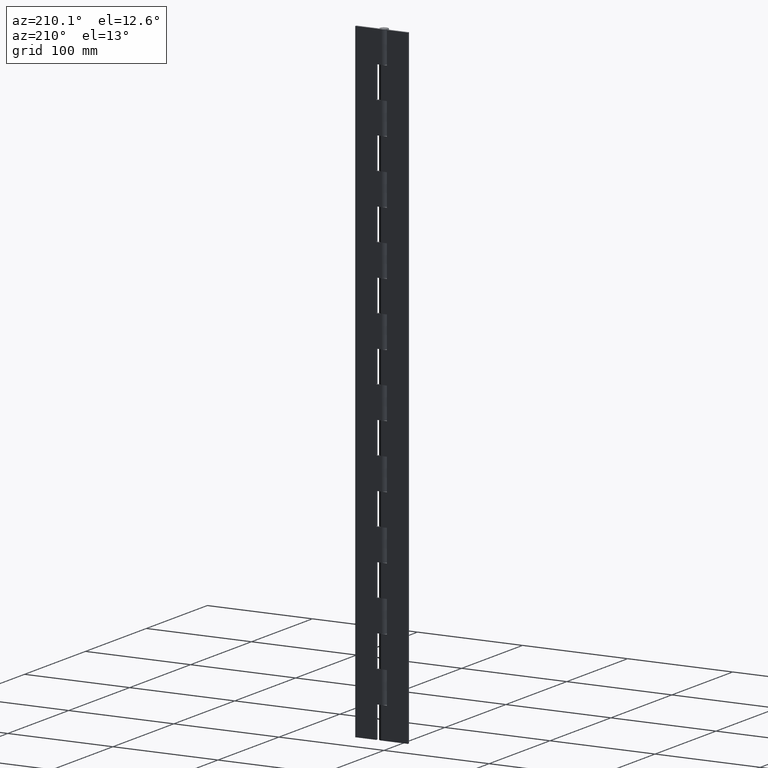
[diagram: clean part render]
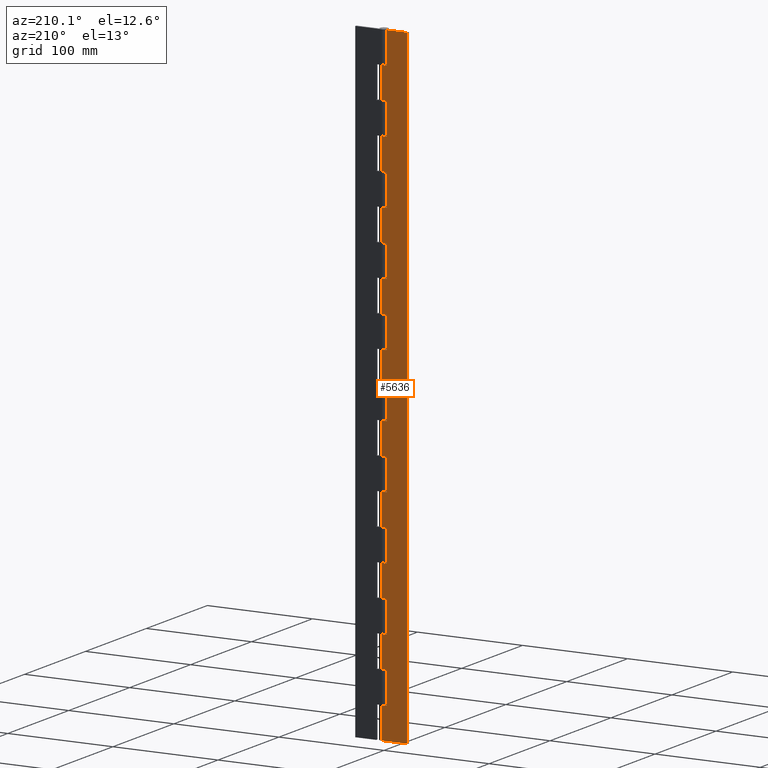
[diagram: same view with one face highlighted and labeled with its STEP entity id]
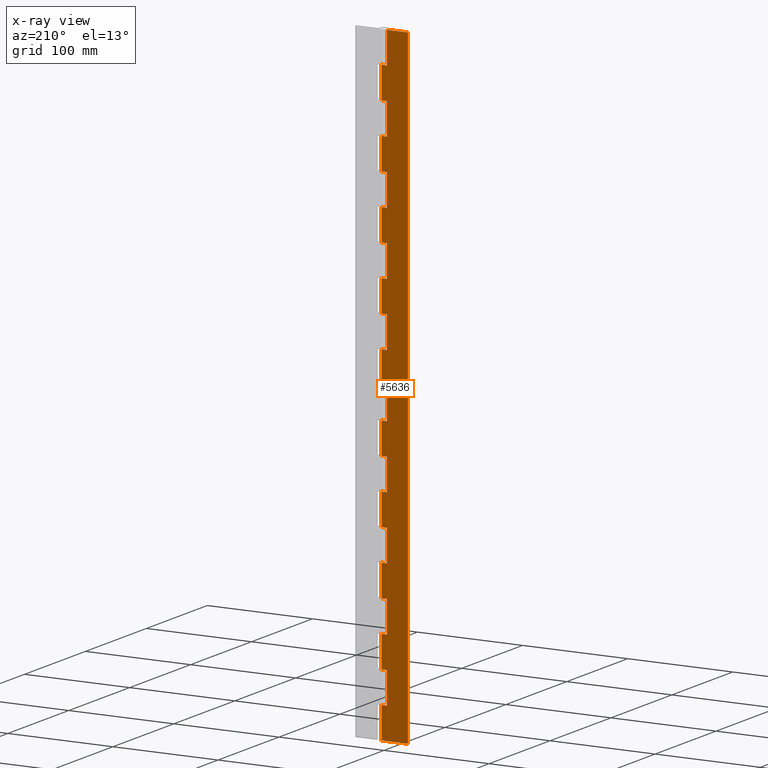
[diagram: x-ray of the same camera — body ghosted, the highlighted face saturated]
A machine part, auxiliary view. The second image highlights one B-rep face of the part: STEP entity #5636.
The next image is the same camera in x-ray: the body ghosted, the highlighted face saturated — about 0% of this face is hidden behind the body in this view.
In plain terms, the highlighted face is a freeform B-spline surface patch.
Its self-contained STEP definition (entity closure, byte-faithful):
#2875=CARTESIAN_POINT('',(-5.0,4.0,570.0));
#2876=VERTEX_POINT('',#2875);
#2882=CARTESIAN_POINT('',(-5.0,4.0,600.0));
#2883=VERTEX_POINT('',#2882);
#2884=CARTESIAN_POINT('',(-5.0,4.0,600.0));
#2885=CARTESIAN_POINT('',(-5.0,4.0,570.0));
#2886=QUASI_UNIFORM_CURVE('',1,(#2884,#2885),.UNSPECIFIED.,.F.,.U.);
#2887=EDGE_CURVE('',#2883,#2876,#2886,.T.);
#2937=CARTESIAN_POINT('',(0.0,4.0,570.0));
#2938=VERTEX_POINT('',#2937);
#2958=CARTESIAN_POINT('',(-5.0,4.0,570.0));
#2959=CARTESIAN_POINT('',(0.0,4.0,570.0));
#2960=QUASI_UNIFORM_CURVE('',1,(#2958,#2959),.UNSPECIFIED.,.F.,.U.);
#2961=EDGE_CURVE('',#2876,#2938,#2960,.T.);
#2981=CARTESIAN_POINT('',(-5.0,4.0,540.0));
#2982=VERTEX_POINT('',#2981);
#2988=CARTESIAN_POINT('',(0.0,4.0,540.0));
#2989=VERTEX_POINT('',#2988);
#2990=CARTESIAN_POINT('',(0.0,4.0,540.0));
#2991=CARTESIAN_POINT('',(-5.0,4.0,540.0));
#2992=QUASI_UNIFORM_CURVE('',1,(#2990,#2991),.UNSPECIFIED.,.F.,.U.);
#2993=EDGE_CURVE('',#2989,#2982,#2992,.T.);
#3087=CARTESIAN_POINT('',(0.0,4.0,510.0));
#3088=VERTEX_POINT('',#3087);
#3108=CARTESIAN_POINT('',(-5.0,4.0,510.0));
#3109=VERTEX_POINT('',#3108);
#3110=CARTESIAN_POINT('',(-5.0,4.0,510.0));
#3111=CARTESIAN_POINT('',(0.0,4.0,510.0));
#3112=QUASI_UNIFORM_CURVE('',1,(#3110,#3111),.UNSPECIFIED.,.F.,.U.);
#3113=EDGE_CURVE('',#3109,#3088,#3112,.T.);
#3134=CARTESIAN_POINT('',(-5.0,4.0,540.0));
#3135=CARTESIAN_POINT('',(-5.0,4.0,510.0));
#3136=QUASI_UNIFORM_CURVE('',1,(#3134,#3135),.UNSPECIFIED.,.F.,.U.);
#3137=EDGE_CURVE('',#2982,#3109,#3136,.T.);
#3157=CARTESIAN_POINT('',(-5.0,4.0,480.0));
#3158=VERTEX_POINT('',#3157);
#3164=CARTESIAN_POINT('',(0.0,4.0,480.0));
#3165=VERTEX_POINT('',#3164);
#3166=CARTESIAN_POINT('',(0.0,4.0,480.0));
#3167=CARTESIAN_POINT('',(-5.0,4.0,480.0));
#3168=QUASI_UNIFORM_CURVE('',1,(#3166,#3167),.UNSPECIFIED.,.F.,.U.);
#3169=EDGE_CURVE('',#3165,#3158,#3168,.T.);
#3263=CARTESIAN_POINT('',(0.0,4.0,450.0));
#3264=VERTEX_POINT('',#3263);
#3284=CARTESIAN_POINT('',(-5.0,4.0,450.0));
#3285=VERTEX_POINT('',#3284);
#3286=CARTESIAN_POINT('',(-5.0,4.0,450.0));
#3287=CARTESIAN_POINT('',(0.0,4.0,450.0));
#3288=QUASI_UNIFORM_CURVE('',1,(#3286,#3287),.UNSPECIFIED.,.F.,.U.);
#3289=EDGE_CURVE('',#3285,#3264,#3288,.T.);
#3310=CARTESIAN_POINT('',(-5.0,4.0,480.0));
#3311=CARTESIAN_POINT('',(-5.0,4.0,450.0));
#3312=QUASI_UNIFORM_CURVE('',1,(#3310,#3311),.UNSPECIFIED.,.F.,.U.);
#3313=EDGE_CURVE('',#3158,#3285,#3312,.T.);
#3333=CARTESIAN_POINT('',(-5.0,4.0,420.0));
#3334=VERTEX_POINT('',#3333);
#3340=CARTESIAN_POINT('',(0.0,4.0,420.0));
#3341=VERTEX_POINT('',#3340);
#3342=CARTESIAN_POINT('',(0.0,4.0,420.0));
#3343=CARTESIAN_POINT('',(-5.0,4.0,420.0));
#3344=QUASI_UNIFORM_CURVE('',1,(#3342,#3343),.UNSPECIFIED.,.F.,.U.);
#3345=EDGE_CURVE('',#3341,#3334,#3344,.T.);
#3439=CARTESIAN_POINT('',(0.0,4.0,390.0));
#3440=VERTEX_POINT('',#3439);
#3460=CARTESIAN_POINT('',(-5.0,4.0,390.0));
#3461=VERTEX_POINT('',#3460);
#3462=CARTESIAN_POINT('',(-5.0,4.0,390.0));
#3463=CARTESIAN_POINT('',(0.0,4.0,390.0));
#3464=QUASI_UNIFORM_CURVE('',1,(#3462,#3463),.UNSPECIFIED.,.F.,.U.);
#3465=EDGE_CURVE('',#3461,#3440,#3464,.T.);
#3486=CARTESIAN_POINT('',(-5.0,4.0,420.0));
#3487=CARTESIAN_POINT('',(-5.0,4.0,390.0));
#3488=QUASI_UNIFORM_CURVE('',1,(#3486,#3487),.UNSPECIFIED.,.F.,.U.);
#3489=EDGE_CURVE('',#3334,#3461,#3488,.T.);
#3509=CARTESIAN_POINT('',(-5.0,4.0,360.0));
#3510=VERTEX_POINT('',#3509);
#3516=CARTESIAN_POINT('',(0.0,4.0,360.0));
#3517=VERTEX_POINT('',#3516);
#3518=CARTESIAN_POINT('',(0.0,4.0,360.0));
#3519=CARTESIAN_POINT('',(-5.0,4.0,360.0));
#3520=QUASI_UNIFORM_CURVE('',1,(#3518,#3519),.UNSPECIFIED.,.F.,.U.);
#3521=EDGE_CURVE('',#3517,#3510,#3520,.T.);
#3615=CARTESIAN_POINT('',(0.0,4.0,330.0));
#3616=VERTEX_POINT('',#3615);
#3636=CARTESIAN_POINT('',(-5.0,4.0,330.0));
#3637=VERTEX_POINT('',#3636);
#3638=CARTESIAN_POINT('',(-5.0,4.0,330.0));
#3639=CARTESIAN_POINT('',(0.0,4.0,330.0));
#3640=QUASI_UNIFORM_CURVE('',1,(#3638,#3639),.UNSPECIFIED.,.F.,.U.);
#3641=EDGE_CURVE('',#3637,#3616,#3640,.T.);
#3662=CARTESIAN_POINT('',(-5.0,4.0,360.0));
#3663=CARTESIAN_POINT('',(-5.0,4.0,330.0));
#3664=QUASI_UNIFORM_CURVE('',1,(#3662,#3663),.UNSPECIFIED.,.F.,.U.);
#3665=EDGE_CURVE('',#3510,#3637,#3664,.T.);
#3685=CARTESIAN_POINT('',(-5.0,4.0,300.0));
#3686=VERTEX_POINT('',#3685);
#3692=CARTESIAN_POINT('',(0.0,4.0,300.0));
#3693=VERTEX_POINT('',#3692);
#3694=CARTESIAN_POINT('',(0.0,4.0,300.0));
#3695=CARTESIAN_POINT('',(-5.0,4.0,300.0));
#3696=QUASI_UNIFORM_CURVE('',1,(#3694,#3695),.UNSPECIFIED.,.F.,.U.);
#3697=EDGE_CURVE('',#3693,#3686,#3696,.T.);
#3791=CARTESIAN_POINT('',(0.0,4.0,270.0));
#3792=VERTEX_POINT('',#3791);
#3812=CARTESIAN_POINT('',(-5.0,4.0,270.0));
#3813=VERTEX_POINT('',#3812);
#3814=CARTESIAN_POINT('',(-5.0,4.0,270.0));
#3815=CARTESIAN_POINT('',(0.0,4.0,270.0));
#3816=QUASI_UNIFORM_CURVE('',1,(#3814,#3815),.UNSPECIFIED.,.F.,.U.);
#3817=EDGE_CURVE('',#3813,#3792,#3816,.T.);
#3838=CARTESIAN_POINT('',(-5.0,4.0,300.0));
#3839=CARTESIAN_POINT('',(-5.0,4.0,270.0));
#3840=QUASI_UNIFORM_CURVE('',1,(#3838,#3839),.UNSPECIFIED.,.F.,.U.);
#3841=EDGE_CURVE('',#3686,#3813,#3840,.T.);
#3861=CARTESIAN_POINT('',(-5.0,4.0,240.0));
#3862=VERTEX_POINT('',#3861);
#3868=CARTESIAN_POINT('',(0.0,4.0,240.0));
#3869=VERTEX_POINT('',#3868);
#3870=CARTESIAN_POINT('',(0.0,4.0,240.0));
#3871=CARTESIAN_POINT('',(-5.0,4.0,240.0));
#3872=QUASI_UNIFORM_CURVE('',1,(#3870,#3871),.UNSPECIFIED.,.F.,.U.);
#3873=EDGE_CURVE('',#3869,#3862,#3872,.T.);
#3967=CARTESIAN_POINT('',(0.0,4.0,210.0));
#3968=VERTEX_POINT('',#3967);
#3988=CARTESIAN_POINT('',(-5.0,4.0,210.0));
#3989=VERTEX_POINT('',#3988);
#3990=CARTESIAN_POINT('',(-5.0,4.0,210.0));
#3991=CARTESIAN_POINT('',(0.0,4.0,210.0));
#3992=QUASI_UNIFORM_CURVE('',1,(#3990,#3991),.UNSPECIFIED.,.F.,.U.);
#3993=EDGE_CURVE('',#3989,#3968,#3992,.T.);
#4014=CARTESIAN_POINT('',(-5.0,4.0,240.0));
#4015=CARTESIAN_POINT('',(-5.0,4.0,210.0));
#4016=QUASI_UNIFORM_CURVE('',1,(#4014,#4015),.UNSPECIFIED.,.F.,.U.);
#4017=EDGE_CURVE('',#3862,#3989,#4016,.T.);
#4037=CARTESIAN_POINT('',(-5.0,4.0,180.0));
#4038=VERTEX_POINT('',#4037);
#4044=CARTESIAN_POINT('',(0.0,4.0,180.0));
#4045=VERTEX_POINT('',#4044);
#4046=CARTESIAN_POINT('',(0.0,4.0,180.0));
#4047=CARTESIAN_POINT('',(-5.0,4.0,180.0));
#4048=QUASI_UNIFORM_CURVE('',1,(#4046,#4047),.UNSPECIFIED.,.F.,.U.);
#4049=EDGE_CURVE('',#4045,#4038,#4048,.T.);
#4143=CARTESIAN_POINT('',(0.0,4.0,150.0));
#4144=VERTEX_POINT('',#4143);
#4164=CARTESIAN_POINT('',(-5.0,4.0,150.0));
#4165=VERTEX_POINT('',#4164);
#4166=CARTESIAN_POINT('',(-5.0,4.0,150.0));
#4167=CARTESIAN_POINT('',(0.0,4.0,150.0));
#4168=QUASI_UNIFORM_CURVE('',1,(#4166,#4167),.UNSPECIFIED.,.F.,.U.);
#4169=EDGE_CURVE('',#4165,#4144,#4168,.T.);
#4190=CARTESIAN_POINT('',(-5.0,4.0,180.0));
#4191=CARTESIAN_POINT('',(-5.0,4.0,150.0));
#4192=QUASI_UNIFORM_CURVE('',1,(#4190,#4191),.UNSPECIFIED.,.F.,.U.);
#4193=EDGE_CURVE('',#4038,#4165,#4192,.T.);
#4213=CARTESIAN_POINT('',(-5.0,4.0,120.0));
#4214=VERTEX_POINT('',#4213);
#4220=CARTESIAN_POINT('',(0.0,4.0,120.0));
#4221=VERTEX_POINT('',#4220);
#4222=CARTESIAN_POINT('',(0.0,4.0,120.0));
#4223=CARTESIAN_POINT('',(-5.0,4.0,120.0));
#4224=QUASI_UNIFORM_CURVE('',1,(#4222,#4223),.UNSPECIFIED.,.F.,.U.);
#4225=EDGE_CURVE('',#4221,#4214,#4224,.T.);
#4319=CARTESIAN_POINT('',(0.0,4.0,90.0));
#4320=VERTEX_POINT('',#4319);
#4340=CARTESIAN_POINT('',(-5.0,4.0,90.0));
#4341=VERTEX_POINT('',#4340);
#4342=CARTESIAN_POINT('',(-5.0,4.0,90.0));
#4343=CARTESIAN_POINT('',(0.0,4.0,90.0));
#4344=QUASI_UNIFORM_CURVE('',1,(#4342,#4343),.UNSPECIFIED.,.F.,.U.);
#4345=EDGE_CURVE('',#4341,#4320,#4344,.T.);
#4366=CARTESIAN_POINT('',(-5.0,4.0,120.0));
#4367=CARTESIAN_POINT('',(-5.0,4.0,90.0));
#4368=QUASI_UNIFORM_CURVE('',1,(#4366,#4367),.UNSPECIFIED.,.F.,.U.);
#4369=EDGE_CURVE('',#4214,#4341,#4368,.T.);
#4389=CARTESIAN_POINT('',(-5.0,4.0,60.0));
#4390=VERTEX_POINT('',#4389);
#4396=CARTESIAN_POINT('',(0.0,4.0,60.0));
#4397=VERTEX_POINT('',#4396);
#4398=CARTESIAN_POINT('',(0.0,4.0,60.0));
#4399=CARTESIAN_POINT('',(-5.0,4.0,60.0));
#4400=QUASI_UNIFORM_CURVE('',1,(#4398,#4399),.UNSPECIFIED.,.F.,.U.);
#4401=EDGE_CURVE('',#4397,#4390,#4400,.T.);
#4495=CARTESIAN_POINT('',(0.0,4.0,30.0));
#4496=VERTEX_POINT('',#4495);
#4516=CARTESIAN_POINT('',(-5.0,4.0,30.0));
#4517=VERTEX_POINT('',#4516);
#4518=CARTESIAN_POINT('',(-5.0,4.0,30.0));
#4519=CARTESIAN_POINT('',(0.0,4.0,30.0));
#4520=QUASI_UNIFORM_CURVE('',1,(#4518,#4519),.UNSPECIFIED.,.F.,.U.);
#4521=EDGE_CURVE('',#4517,#4496,#4520,.T.);
#4542=CARTESIAN_POINT('',(-5.0,4.0,60.0));
#4543=CARTESIAN_POINT('',(-5.0,4.0,30.0));
#4544=QUASI_UNIFORM_CURVE('',1,(#4542,#4543),.UNSPECIFIED.,.F.,.U.);
#4545=EDGE_CURVE('',#4390,#4517,#4544,.T.);
#4556=CARTESIAN_POINT('',(2.449213E-016,4.0,0.0));
#4557=VERTEX_POINT('',#4556);
#4558=CARTESIAN_POINT('',(-25.0,4.0,0.0));
#4559=VERTEX_POINT('',#4558);
#4560=CARTESIAN_POINT('',(2.449213E-016,4.0,0.0));
#4561=CARTESIAN_POINT('',(-25.0,4.0,0.0));
#4562=QUASI_UNIFORM_CURVE('',1,(#4560,#4561),.UNSPECIFIED.,.F.,.U.);
#4563=EDGE_CURVE('',#4557,#4559,#4562,.T.);
#4642=CARTESIAN_POINT('',(-25.0,4.0,600.0));
#4643=VERTEX_POINT('',#4642);
#4649=CARTESIAN_POINT('',(-25.0,4.0,600.0));
#4650=CARTESIAN_POINT('',(-25.0,4.0,0.0));
#4651=QUASI_UNIFORM_CURVE('',1,(#4649,#4650),.UNSPECIFIED.,.F.,.U.);
#4652=EDGE_CURVE('',#4643,#4559,#4651,.T.);
#4686=CARTESIAN_POINT('',(0.0,4.0,30.0));
#4687=CARTESIAN_POINT('',(2.449213E-016,4.0,0.0));
#4688=QUASI_UNIFORM_CURVE('',1,(#4686,#4687),.UNSPECIFIED.,.F.,.U.);
#4689=EDGE_CURVE('',#4496,#4557,#4688,.T.);
#4772=CARTESIAN_POINT('',(0.0,4.0,90.0));
#4773=CARTESIAN_POINT('',(0.0,4.0,60.0));
#4774=QUASI_UNIFORM_CURVE('',1,(#4772,#4773),.UNSPECIFIED.,.F.,.U.);
#4775=EDGE_CURVE('',#4320,#4397,#4774,.T.);
#4858=CARTESIAN_POINT('',(0.0,4.0,150.0));
#4859=CARTESIAN_POINT('',(0.0,4.0,120.0));
#4860=QUASI_UNIFORM_CURVE('',1,(#4858,#4859),.UNSPECIFIED.,.F.,.U.);
#4861=EDGE_CURVE('',#4144,#4221,#4860,.T.);
#4944=CARTESIAN_POINT('',(0.0,4.0,210.0));
#4945=CARTESIAN_POINT('',(0.0,4.0,180.0));
#4946=QUASI_UNIFORM_CURVE('',1,(#4944,#4945),.UNSPECIFIED.,.F.,.U.);
#4947=EDGE_CURVE('',#3968,#4045,#4946,.T.);
#5030=CARTESIAN_POINT('',(0.0,4.0,270.0));
#5031=CARTESIAN_POINT('',(0.0,4.0,240.0));
#5032=QUASI_UNIFORM_CURVE('',1,(#5030,#5031),.UNSPECIFIED.,.F.,.U.);
#5033=EDGE_CURVE('',#3792,#3869,#5032,.T.);
#5116=CARTESIAN_POINT('',(0.0,4.0,330.0));
#5117=CARTESIAN_POINT('',(0.0,4.0,300.0));
#5118=QUASI_UNIFORM_CURVE('',1,(#5116,#5117),.UNSPECIFIED.,.F.,.U.);
#5119=EDGE_CURVE('',#3616,#3693,#5118,.T.);
#5202=CARTESIAN_POINT('',(0.0,4.0,390.0));
#5203=CARTESIAN_POINT('',(0.0,4.0,360.0));
#5204=QUASI_UNIFORM_CURVE('',1,(#5202,#5203),.UNSPECIFIED.,.F.,.U.);
#5205=EDGE_CURVE('',#3440,#3517,#5204,.T.);
#5288=CARTESIAN_POINT('',(0.0,4.0,450.0));
#5289=CARTESIAN_POINT('',(0.0,4.0,420.0));
#5290=QUASI_UNIFORM_CURVE('',1,(#5288,#5289),.UNSPECIFIED.,.F.,.U.);
#5291=EDGE_CURVE('',#3264,#3341,#5290,.T.);
#5374=CARTESIAN_POINT('',(0.0,4.0,510.0));
#5375=CARTESIAN_POINT('',(0.0,4.0,480.0));
#5376=QUASI_UNIFORM_CURVE('',1,(#5374,#5375),.UNSPECIFIED.,.F.,.U.);
#5377=EDGE_CURVE('',#3088,#3165,#5376,.T.);
#5437=CARTESIAN_POINT('',(-5.0,4.0,600.0));
#5438=CARTESIAN_POINT('',(-25.0,4.0,600.0));
#5439=QUASI_UNIFORM_CURVE('',1,(#5437,#5438),.UNSPECIFIED.,.F.,.U.);
#5440=EDGE_CURVE('',#2883,#4643,#5439,.T.);
#5480=CARTESIAN_POINT('',(0.0,4.0,570.0));
#5481=CARTESIAN_POINT('',(0.0,4.0,540.0));
#5482=QUASI_UNIFORM_CURVE('',1,(#5480,#5481),.UNSPECIFIED.,.F.,.U.);
#5483=EDGE_CURVE('',#2938,#2989,#5482,.T.);
#5587=CARTESIAN_POINT('',(-26.248749951545150,4.0,629.969998837083610));
#5588=CARTESIAN_POINT('',(-26.248749951545150,4.0,-29.970014930337669));
#5589=CARTESIAN_POINT('',(1.248750622097401,4.0,629.969998837083610));
#5590=CARTESIAN_POINT('',(1.248750622097401,4.0,-29.970014930337669));
#5591=B_SPLINE_SURFACE_WITH_KNOTS('',1,1,((#5587,#5589),(#5588,#5590)),.UNSPECIFIED.,.F.,.F.,.U.,(2,2),(2,2),(0.0,659.940013767421310),(0.0,27.497500573642551),.UNSPECIFIED.);
#5592=ORIENTED_EDGE('',*,*,#2961,.T.);
#5593=ORIENTED_EDGE('',*,*,#5483,.T.);
#5594=ORIENTED_EDGE('',*,*,#2993,.T.);
#5595=ORIENTED_EDGE('',*,*,#3137,.T.);
#5596=ORIENTED_EDGE('',*,*,#3113,.T.);
#5597=ORIENTED_EDGE('',*,*,#5377,.T.);
#5598=ORIENTED_EDGE('',*,*,#3169,.T.);
#5599=ORIENTED_EDGE('',*,*,#3313,.T.);
#5600=ORIENTED_EDGE('',*,*,#3289,.T.);
#5601=ORIENTED_EDGE('',*,*,#5291,.T.);
#5602=ORIENTED_EDGE('',*,*,#3345,.T.);
#5603=ORIENTED_EDGE('',*,*,#3489,.T.);
#5604=ORIENTED_EDGE('',*,*,#3465,.T.);
#5605=ORIENTED_EDGE('',*,*,#5205,.T.);
#5606=ORIENTED_EDGE('',*,*,#3521,.T.);
#5607=ORIENTED_EDGE('',*,*,#3665,.T.);
#5608=ORIENTED_EDGE('',*,*,#3641,.T.);
#5609=ORIENTED_EDGE('',*,*,#5119,.T.);
#5610=ORIENTED_EDGE('',*,*,#3697,.T.);
#5611=ORIENTED_EDGE('',*,*,#3841,.T.);
#5612=ORIENTED_EDGE('',*,*,#3817,.T.);
#5613=ORIENTED_EDGE('',*,*,#5033,.T.);
#5614=ORIENTED_EDGE('',*,*,#3873,.T.);
#5615=ORIENTED_EDGE('',*,*,#4017,.T.);
#5616=ORIENTED_EDGE('',*,*,#3993,.T.);
#5617=ORIENTED_EDGE('',*,*,#4947,.T.);
#5618=ORIENTED_EDGE('',*,*,#4049,.T.);
#5619=ORIENTED_EDGE('',*,*,#4193,.T.);
#5620=ORIENTED_EDGE('',*,*,#4169,.T.);
#5621=ORIENTED_EDGE('',*,*,#4861,.T.);
#5622=ORIENTED_EDGE('',*,*,#4225,.T.);
#5623=ORIENTED_EDGE('',*,*,#4369,.T.);
#5624=ORIENTED_EDGE('',*,*,#4345,.T.);
#5625=ORIENTED_EDGE('',*,*,#4775,.T.);
#5626=ORIENTED_EDGE('',*,*,#4401,.T.);
#5627=ORIENTED_EDGE('',*,*,#4545,.T.);
#5628=ORIENTED_EDGE('',*,*,#4521,.T.);
#5629=ORIENTED_EDGE('',*,*,#4689,.T.);
#5630=ORIENTED_EDGE('',*,*,#4563,.T.);
#5631=ORIENTED_EDGE('',*,*,#4652,.F.);
#5632=ORIENTED_EDGE('',*,*,#5440,.F.);
#5633=ORIENTED_EDGE('',*,*,#2887,.T.);
#5634=EDGE_LOOP('',(#5592,#5593,#5594,#5595,#5596,#5597,#5598,#5599,#5600,#5601,#5602,#5603,#5604,#5605,#5606,#5607,#5608,#5609,#5610,#5611,#5612,#5613,#5614,#5615,#5616,#5617,#5618,#5619,#5620,#5621,#5622,#5623,#5624,#5625,#5626,#5627,#5628,#5629,#5630,#5631,#5632,#5633));
#5635=FACE_OUTER_BOUND('',#5634,.T.);
#5636=ADVANCED_FACE('',(#5635),#5591,.F.);